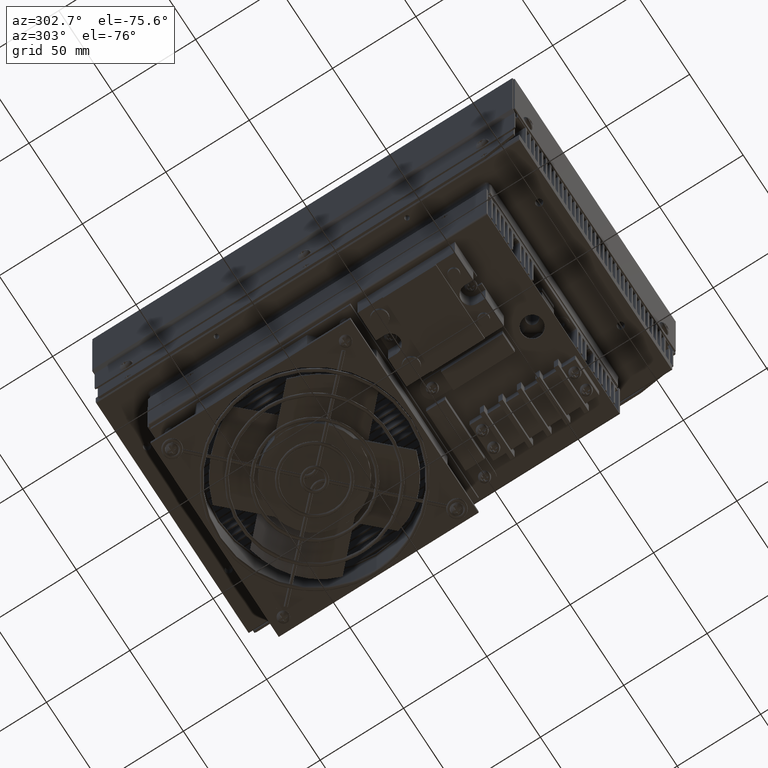
[diagram: clean part render]
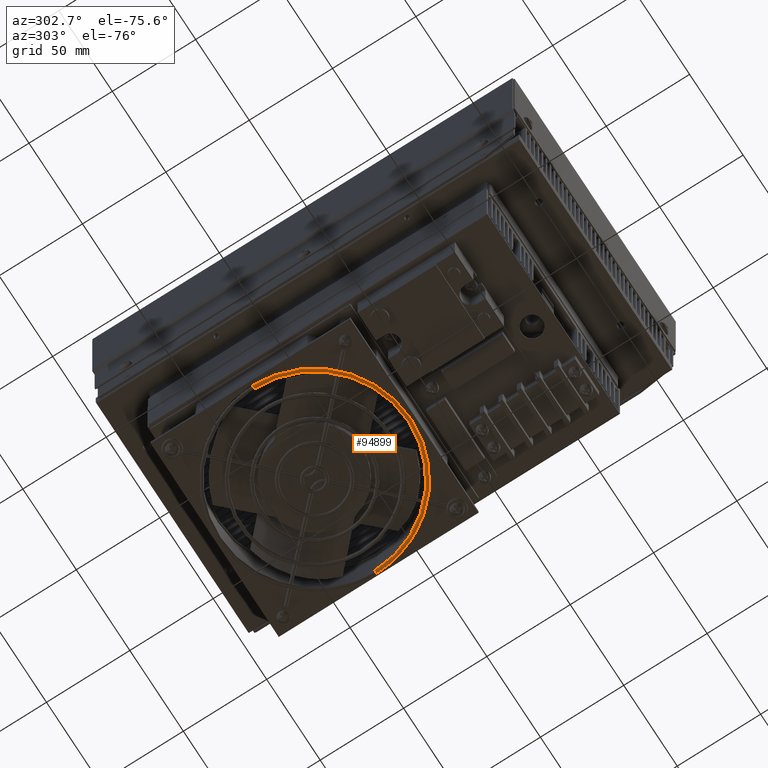
[diagram: same view with one face highlighted and labeled with its STEP entity id]
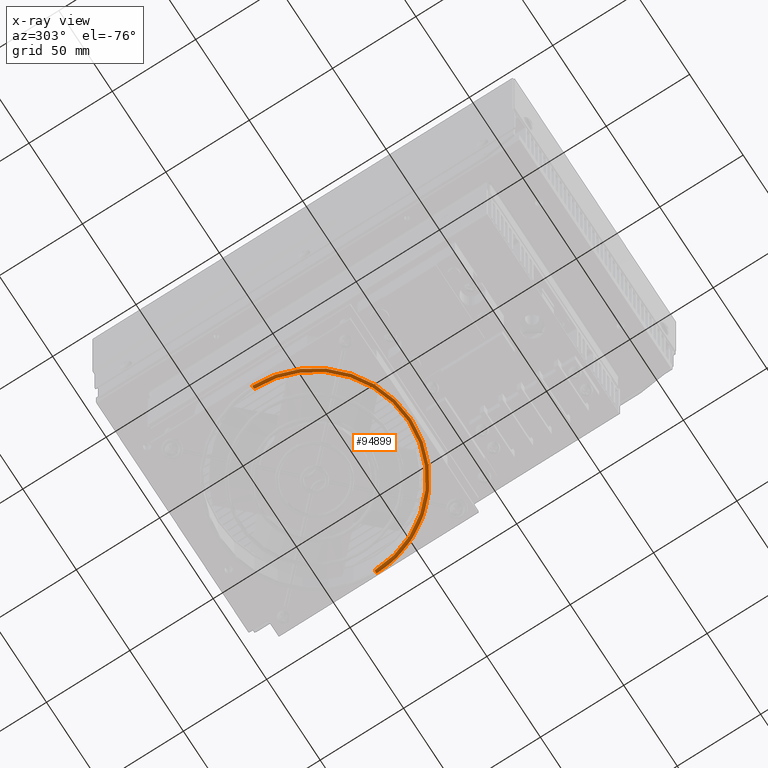
[diagram: x-ray of the same camera — body ghosted, the highlighted face saturated]
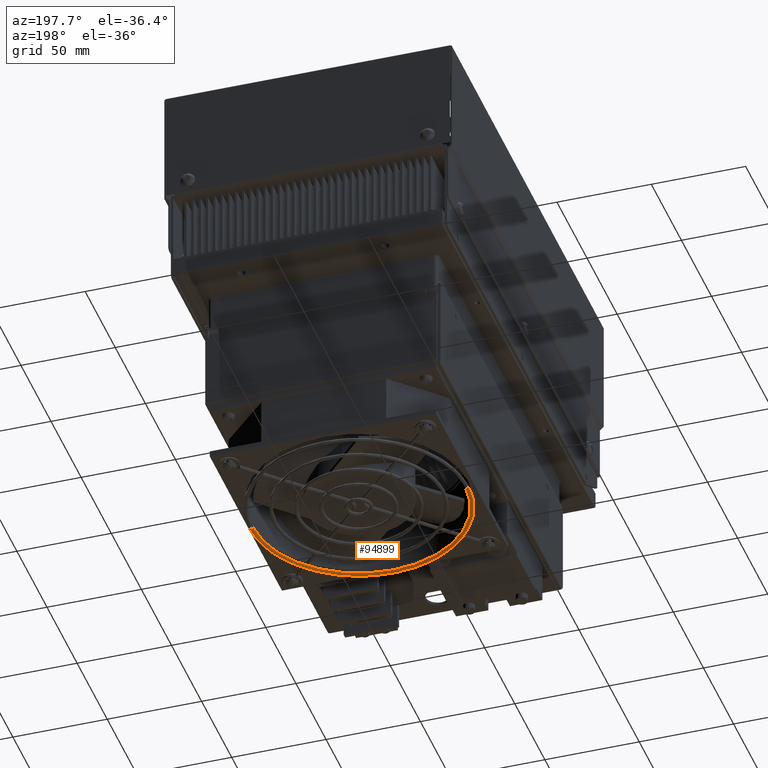
[diagram: same view with one face highlighted and labeled with its STEP entity id]
A machine part, auxiliary view. The second image highlights one B-rep face of the part: STEP entity #94899.
The next image is the same camera in x-ray: the body ghosted, the highlighted face saturated — about 0% of this face is hidden behind the body in this view.
A second angle (auxiliary view) of the same face is appended — the face is thin or edge-on in the first view.
In plain terms, the highlighted face is a freeform B-spline surface patch.
Its self-contained STEP definition (entity closure, byte-faithful):
#671 = DIRECTION ( 'NONE',  ( -1.000000000000000000, 0.0000000000000000000, 0.0000000000000000000 ) ) ;
#1384 =( BOUNDED_SURFACE ( )  B_SPLINE_SURFACE ( 3, 3, ( 
 ( #20581, #74372, #36079, #89876 ),
 ( #43803, #97600, #51540, #5475 ),
 ( #59256, #13196, #67022, #20913 ),
 ( #74690, #28642, #82423, #36398 ) ),
 .UNSPECIFIED., .F., .F., .F. ) 
 B_SPLINE_SURFACE_WITH_KNOTS ( ( 4, 4 ),
 ( 4, 4 ),
 ( 0.0000000000000000000, 1.000000000000000000 ),
 ( 0.0000000000000000000, 1.000000000000000000 ),
 .UNSPECIFIED. ) 
 GEOMETRIC_REPRESENTATION_ITEM ( )  RATIONAL_B_SPLINE_SURFACE ( (
 ( 1.000000000000000000, 0.3333333333333334300, 0.3333333333333334300, 1.000000000000000000),
 ( 0.3333333333333333700, 0.1111111111111111600, 0.1111111111111111600, 0.3333333333333333700),
 ( 0.3333333333333333700, 0.1111111111111111600, 0.1111111111111111600, 0.3333333333333333700),
 ( 1.000000000000000000, 0.3333333333333334300, 0.3333333333333334300, 1.000000000000000000) ) ) 
 REPRESENTATION_ITEM ( '' )  SURFACE ( )  );
#1897 = CARTESIAN_POINT ( 'NONE',  ( 3.272114742927082700, -6.914366711723946700, 0.9702976528827279600 ) ) ;
#5418 = CIRCLE ( 'NONE', #29923, 2.287500000000000100 ) ;
#5475 = CARTESIAN_POINT ( 'NONE',  ( -1.152885257072917600, -6.914366711723946700, 0.8952976528827278900 ) ) ;
#5683 = VERTEX_POINT ( 'NONE', #50328 ) ;
#8769 = EDGE_CURVE ( 'NONE', #90889, #99360, #15283, .T. ) ;
#9796 = EDGE_CURVE ( 'NONE', #5683, #19762, #5418, .T. ) ;
#13196 = CARTESIAN_POINT ( 'NONE',  ( 3.347114742927083300, -11.48936671172395000, 0.8952976528827280000 ) ) ;
#15283 = CIRCLE ( 'NONE', #53081, 2.212499999999999900 ) ;
#18360 = CARTESIAN_POINT ( 'NONE',  ( 3.309614742927083200, -6.914366711723946700, 0.9702976528827279600 ) ) ;
#19762 = VERTEX_POINT ( 'NONE', #32941 ) ;
#20581 = CARTESIAN_POINT ( 'NONE',  ( 3.272114742927083600, -6.914366711723946700, 0.9702976528827279600 ) ) ;
#20913 = CARTESIAN_POINT ( 'NONE',  ( -1.227885257072917300, -6.914366711723946700, 0.8952976528827278900 ) ) ;
#23452 = ORIENTED_EDGE ( 'NONE', *, *, #9796, .T. ) ;
#23615 = EDGE_LOOP ( 'NONE', ( #77798, #69206, #23452, #98650 ) ) ;
#23639 = AXIS2_PLACEMENT_3D ( 'NONE', #92810, #46738, #671 ) ;
#25944 = AXIS2_PLACEMENT_3D ( 'NONE', #18360, #72102, #26096 ) ;
#26096 = DIRECTION ( 'NONE',  ( 1.000000000000000000, 0.0000000000000000000, 0.0000000000000000000 ) ) ;
#26783 = DIRECTION ( 'NONE',  ( 0.0000000000000000000, 0.0000000000000000000, -1.000000000000000000 ) ) ;
#27107 = EDGE_CURVE ( 'NONE', #90889, #5683, #31617, .T. ) ;
#28642 = CARTESIAN_POINT ( 'NONE',  ( 3.347114742927083300, -11.48936671172394600, 0.9702976528827279600 ) ) ;
#29923 = AXIS2_PLACEMENT_3D ( 'NONE', #35558, #89329, #43251 ) ;
#31617 = CIRCLE ( 'NONE', #25944, 0.03749999999999980400 ) ;
#32941 = CARTESIAN_POINT ( 'NONE',  ( -1.227885257072916800, -6.914366711723946700, 0.9702976528827279600 ) ) ;
#35365 = FACE_OUTER_BOUND ( 'NONE', #23615, .T. ) ;
#35558 = CARTESIAN_POINT ( 'NONE',  ( 1.059614742927083000, -6.914366711723946700, 0.9702976528827279600 ) ) ;
#36079 = CARTESIAN_POINT ( 'NONE',  ( -1.152885257072917600, -11.33936671172394700, 0.9702976528827279600 ) ) ;
#36398 = CARTESIAN_POINT ( 'NONE',  ( -1.227885257072917300, -6.914366711723946700, 0.9702976528827279600 ) ) ;
#43251 = DIRECTION ( 'NONE',  ( -1.000000000000000000, 0.0000000000000000000, 0.0000000000000000000 ) ) ;
#43803 = CARTESIAN_POINT ( 'NONE',  ( 3.272114742927083600, -6.914366711723946700, 0.8952976528827278900 ) ) ;
#46738 = DIRECTION ( 'NONE',  ( 0.0000000000000000000, 1.000000000000000000, 0.0000000000000000000 ) ) ;
#50328 = CARTESIAN_POINT ( 'NONE',  ( 3.347114742927082900, -6.914366711723946700, 0.9702976528827279600 ) ) ;
#51540 = CARTESIAN_POINT ( 'NONE',  ( -1.152885257072917600, -11.33936671172394900, 0.8952976528827280000 ) ) ;
#53081 = AXIS2_PLACEMENT_3D ( 'NONE', #72810, #26783, #80537 ) ;
#59256 = CARTESIAN_POINT ( 'NONE',  ( 3.347114742927083300, -6.914366711723946700, 0.8952976528827278900 ) ) ;
#66271 = CARTESIAN_POINT ( 'NONE',  ( -1.152885257072916700, -6.914366711723946700, 0.9702976528827279600 ) ) ;
#67022 = CARTESIAN_POINT ( 'NONE',  ( -1.227885257072917300, -11.48936671172395000, 0.8952976528827280000 ) ) ;
#69206 = ORIENTED_EDGE ( 'NONE', *, *, #27107, .T. ) ;
#72102 = DIRECTION ( 'NONE',  ( 1.224646799147353200E-016, -1.000000000000000000, 0.0000000000000000000 ) ) ;
#72810 = CARTESIAN_POINT ( 'NONE',  ( 1.059614742927083000, -6.914366711723946700, 0.9702976528827279600 ) ) ;
#74372 = CARTESIAN_POINT ( 'NONE',  ( 3.272114742927083600, -11.33936671172394700, 0.9702976528827279600 ) ) ;
#74690 = CARTESIAN_POINT ( 'NONE',  ( 3.347114742927082900, -6.914366711723946700, 0.9702976528827279600 ) ) ;
#77798 = ORIENTED_EDGE ( 'NONE', *, *, #8769, .F. ) ;
#80537 = DIRECTION ( 'NONE',  ( -1.000000000000000000, 0.0000000000000000000, 0.0000000000000000000 ) ) ;
#82423 = CARTESIAN_POINT ( 'NONE',  ( -1.227885257072917300, -11.48936671172394600, 0.9702976528827279600 ) ) ;
#89329 = DIRECTION ( 'NONE',  ( 0.0000000000000000000, 0.0000000000000000000, -1.000000000000000000 ) ) ;
#89876 = CARTESIAN_POINT ( 'NONE',  ( -1.152885257072917600, -6.914366711723946700, 0.9702976528827279600 ) ) ;
#90889 = VERTEX_POINT ( 'NONE', #1897 ) ;
#91954 = EDGE_CURVE ( 'NONE', #99360, #19762, #94064, .T. ) ;
#92810 = CARTESIAN_POINT ( 'NONE',  ( -1.190385257072917000, -6.914366711723946700, 0.9702976528827279600 ) ) ;
#94064 = CIRCLE ( 'NONE', #23639, 0.03749999999999994300 ) ;
#94899 = ADVANCED_FACE ( 'NONE', ( #35365 ), #1384, .T. ) ;
#97600 = CARTESIAN_POINT ( 'NONE',  ( 3.272114742927084000, -11.33936671172394900, 0.8952976528827280000 ) ) ;
#98650 = ORIENTED_EDGE ( 'NONE', *, *, #91954, .F. ) ;
#99360 = VERTEX_POINT ( 'NONE', #66271 ) ;